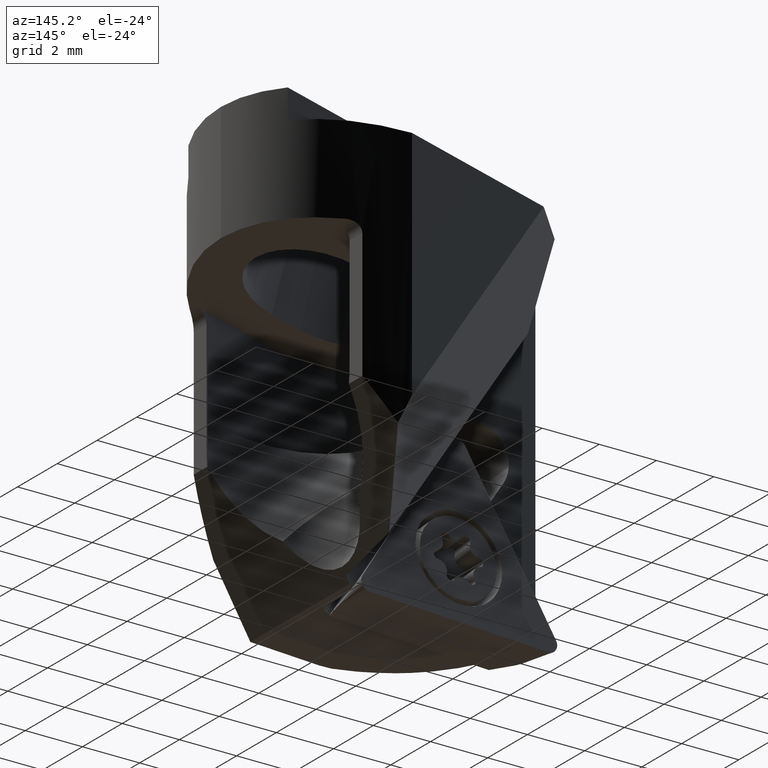
[diagram: clean part render]
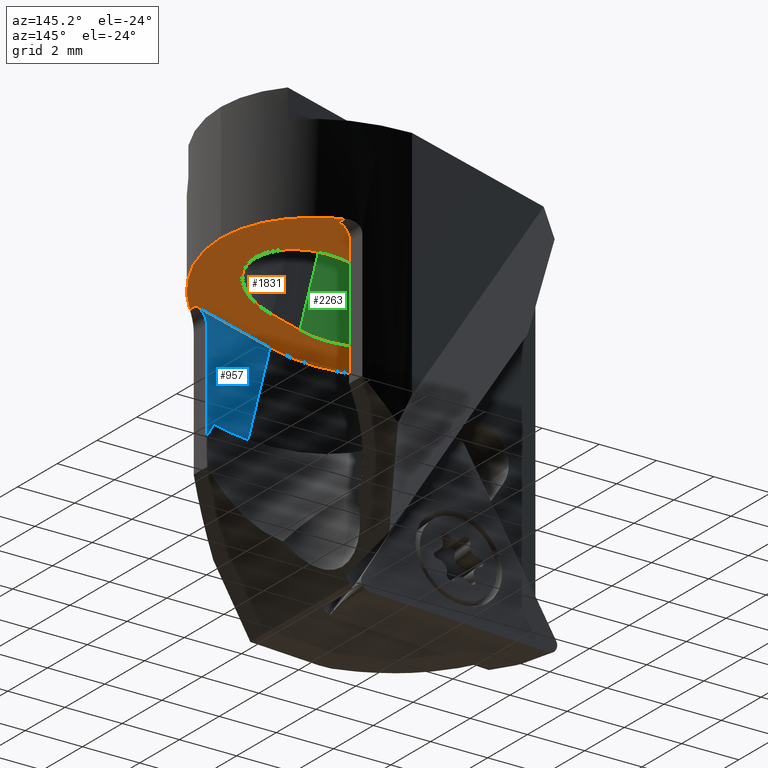
[diagram: same view with three faces highlighted in distinct colors, each labeled with its STEP entity id]
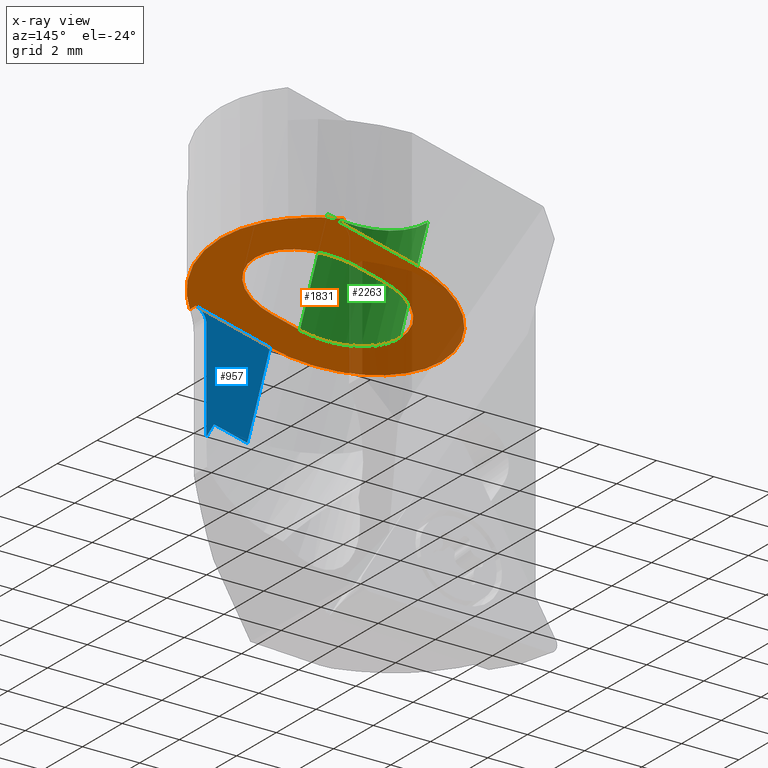
[diagram: x-ray of the same camera — body ghosted, the three highlighted faces saturated]
A machine part, auxiliary view with three faces highlighted in distinct colors.
The next image is the same camera in x-ray (body ghosted, the three faces saturated) — at least one of them is partly hidden behind the body in this view.
Their STEP definitions:

[orange] entity #1831 — the highlighted planar face has unit normal (-0.2419, 0, 0.9703).
#855=VERTEX_POINT('NONE',#2434);
#861=VERTEX_POINT('NONE',#2440);
#889=EDGE_CURVE('NONE',#1639,#1067,#2472,.T.);
#903=EDGE_CURVE('NONE',#1827,#2161,#2486,.T.);
#931=EDGE_CURVE('NONE',#973,#1065,#2515,.T.);
#941=EDGE_CURVE('NONE',#1785,#1617,#2527,.T.);
#969=VERTEX_POINT('NONE',#2557);
#973=VERTEX_POINT('NONE',#2561);
#975=EDGE_CURVE('NONE',#1617,#1349,#2563,.T.);
#989=EDGE_CURVE('NONE',#1929,#861,#2577,.T.);
#993=EDGE_CURVE('NONE',#1067,#1785,#2581,.T.);
#1015=EDGE_CURVE('NONE',#1065,#1775,#2603,.T.);
#1025=EDGE_CURVE('NONE',#1775,#969,#2613,.T.);
#1065=VERTEX_POINT('NONE',#2658);
#1067=VERTEX_POINT('NONE',#2660);
#1349=VERTEX_POINT('NONE',#2971);
#1617=VERTEX_POINT('NONE',#3265);
#1639=VERTEX_POINT('NONE',#3289);
#1695=EDGE_CURVE('NONE',#855,#1929,#3351,.T.);
#1775=VERTEX_POINT('',#3439);
#1785=VERTEX_POINT('',#3450);
#1827=VERTEX_POINT('NONE',#3496);
#1831=ADVANCED_FACE('NONE',(#3501,#3502),#3503,.F.);
#1929=VERTEX_POINT('NONE',#3610);
#2007=EDGE_CURVE('NONE',#1639,#855,#3701,.F.);
#2161=VERTEX_POINT('NONE',#3876);
#2277=EDGE_CURVE('NONE',#861,#1349,#4001,.F.);
#2349=EDGE_CURVE('NONE',#969,#1827,#4087,.T.);
#2375=EDGE_CURVE('NONE',#2161,#973,#4113,.T.);
#2434=CARTESIAN_POINT('',(3.87903905220017,3.89910964599689,-4.52660547320129));
#2440=CARTESIAN_POINT('',(3.87903905220017,-3.89910964599689,-4.5266054732013));
#2472=LINE('',#4233,#4234);
#2486=CIRCLE('',#4258,2.1);
#2515=LINE('',#4302,#4303);
#2527=CIRCLE('',#4317,3.6);
#2557=CARTESIAN_POINT('',(1.27660544682206,2.1,-5.17546504656218));
#2561=CARTESIAN_POINT('',(2.24690117309805,-2.1,-4.93354315096252));
#2563=LINE('',#4367,#4368);
#2577=ELLIPSE('',#4388,5.66837496142443,5.5);
#2581=CIRCLE('',#4393,3.6);
#2603=CIRCLE('',#4439,2.1);
#2613=CIRCLE('',#4458,2.1);
#2658=CARTESIAN_POINT('',(1.27660544682206,-2.1,-5.17546504656218));
#2660=CARTESIAN_POINT('',(1.27660544682206,3.6,-5.17546504656218));
#2971=CARTESIAN_POINT('',(3.87903905220017,-3.6,-4.5266054732013));
#3265=CARTESIAN_POINT('',(1.27660544682206,-3.6,-5.17546504656218));
#3289=CARTESIAN_POINT('',(3.87903905220017,3.6,-4.52660547320129));
#3351=ELLIPSE('',#5523,5.66837496142443,5.5);
#3439=CARTESIAN_POINT('',(-0.761015578357542,-2.57167334302699E-016,-5.68350102732146));
#3450=CARTESIAN_POINT('',(-2.21645916777154,-4.40858287376056E-016,-6.04638387072095));
#3496=CARTESIAN_POINT('',(2.24690117309805,2.1,-4.93354315096252));
#3501=FACE_OUTER_BOUND('',#5720,.T.);
#3502=FACE_BOUND('',#5721,.T.);
#3503=PLANE('',#5722);
#3610=CARTESIAN_POINT('',(5.5,0.0,-4.12245451739959));
#3701=LINE('',#5972,#5973);
#3876=CARTESIAN_POINT('',(4.28452219827765,0.0,-4.42550717020323));
#4001=LINE('',#7179,#7180);
#4087=LINE('',#7305,#7306);
#4113=CIRCLE('',#7346,2.1);
#4233=CARTESIAN_POINT('',(1.27660544682206,3.6,-5.17546504656218));
#4234=VECTOR('',#7427,1.0);
#4258=AXIS2_PLACEMENT_3D('',#7436,#7437,#7438);
#4302=CARTESIAN_POINT('',(1.27660544682206,-2.1,-5.17546504656218));
#4303=VECTOR('',#7464,1.0);
#4317=AXIS2_PLACEMENT_3D('',#7485,#7486,#7487);
#4367=CARTESIAN_POINT('',(1.27660544682206,-3.6,-5.17546504656218));
#4368=VECTOR('',#7525,1.0);
#4388=AXIS2_PLACEMENT_3D('',#7536,#7537,#7538);
#4393=AXIS2_PLACEMENT_3D('',#7539,#7540,#7541);
#4439=AXIS2_PLACEMENT_3D('',#7557,#7558,#7559);
#4458=AXIS2_PLACEMENT_3D('',#7564,#7565,#7566);
#5523=AXIS2_PLACEMENT_3D('',#8417,#8418,#8419);
#5720=EDGE_LOOP('',(#8610,#8611,#8612,#8613,#8614,#8615,#8616,#8617));
#5721=EDGE_LOOP('',(#8618,#8619,#8620,#8621,#8622,#8623));
#5722=AXIS2_PLACEMENT_3D('',#8624,#8625,#8626);
#5972=CARTESIAN_POINT('',(3.87903905220017,-15.0,-4.5266054732013));
#5973=VECTOR('',#8877,1.0);
#7179=CARTESIAN_POINT('',(3.87903905220017,-15.0,-4.5266054732013));
#7180=VECTOR('',#9258,1.0);
#7305=CARTESIAN_POINT('',(1.27660544682206,2.1,-5.17546504656218));
#7306=VECTOR('',#9395,1.0);
#7346=AXIS2_PLACEMENT_3D('',#9409,#9410,#9411);
#7427=DIRECTION('',(-0.970295726275998,0.0,-0.241921895599661));
#7436=CARTESIAN_POINT('',(2.24690117309805,0.0,-4.93354315096252));
#7437=DIRECTION('',(0.241921895599661,0.0,-0.970295726275998));
#7438=DIRECTION('',(0.970295726275998,0.0,0.241921895599661));
#7464=DIRECTION('',(-0.970295726275998,0.0,-0.241921895599661));
#7485=CARTESIAN_POINT('',(1.27660544682205,0.0,-5.17546504656218));
#7486=DIRECTION('',(-0.241921895599661,0.0,0.970295726275998));
#7487=DIRECTION('',(0.970295726275998,0.0,0.241921895599661));
#7525=DIRECTION('',(0.970295726275998,0.0,0.241921895599661));
#7536=CARTESIAN_POINT('',(-6.72791380277227E-016,0.0,-5.49375853303704));
#7537=DIRECTION('',(0.241921895599661,0.0,-0.970295726275998));
#7538=DIRECTION('',(0.970295726275998,0.0,0.241921895599661));
#7539=CARTESIAN_POINT('',(1.27660544682205,0.0,-5.17546504656218));
#7540=DIRECTION('',(-0.241921895599661,0.0,0.970295726275998));
#7541=DIRECTION('',(0.970295726275998,0.0,0.241921895599661));
#7557=CARTESIAN_POINT('',(1.27660544682206,0.0,-5.17546504656218));
#7558=DIRECTION('',(0.241921895599661,0.0,-0.970295726275998));
#7559=DIRECTION('',(0.970295726275998,0.0,0.241921895599661));
#7564=CARTESIAN_POINT('',(1.27660544682206,0.0,-5.17546504656218));
#7565=DIRECTION('',(0.241921895599661,0.0,-0.970295726275998));
#7566=DIRECTION('',(0.970295726275998,0.0,0.241921895599661));
#8417=CARTESIAN_POINT('',(-6.72791380277227E-016,0.0,-5.49375853303704));
#8418=DIRECTION('',(0.241921895599661,0.0,-0.970295726275998));
#8419=DIRECTION('',(0.970295726275998,0.0,0.241921895599661));
#8610=ORIENTED_EDGE('',*,*,#1695,.T.);
#8611=ORIENTED_EDGE('',*,*,#989,.T.);
#8612=ORIENTED_EDGE('',*,*,#2277,.T.);
#8613=ORIENTED_EDGE('',*,*,#975,.F.);
#8614=ORIENTED_EDGE('',*,*,#941,.F.);
#8615=ORIENTED_EDGE('',*,*,#993,.F.);
#8616=ORIENTED_EDGE('',*,*,#889,.F.);
#8617=ORIENTED_EDGE('',*,*,#2007,.T.);
#8618=ORIENTED_EDGE('',*,*,#931,.F.);
#8619=ORIENTED_EDGE('',*,*,#2375,.F.);
#8620=ORIENTED_EDGE('',*,*,#903,.F.);
#8621=ORIENTED_EDGE('',*,*,#2349,.F.);
#8622=ORIENTED_EDGE('',*,*,#1025,.F.);
#8623=ORIENTED_EDGE('',*,*,#1015,.F.);
#8624=CARTESIAN_POINT('',(1.27660544682206,0.0,-5.17546504656218));
#8625=DIRECTION('',(-0.241921895599661,0.0,0.970295726275998));
#8626=DIRECTION('',(0.0,1.0,0.0));
#8877=DIRECTION('',(0.0,-1.0,0.0));
#9258=DIRECTION('',(0.0,-1.0,0.0));
#9395=DIRECTION('',(0.970295726275998,0.0,0.241921895599661));
#9409=CARTESIAN_POINT('',(2.24690117309805,0.0,-4.93354315096252));
#9410=DIRECTION('',(0.241921895599661,0.0,-0.970295726275998));
#9411=DIRECTION('',(0.970295726275998,0.0,0.241921895599661));

[blue] entity #957 — the highlighted planar face has unit normal (0, -1, -0).
#867=EDGE_CURVE('NONE',#1339,#1329,#2446,.T.);
#925=EDGE_CURVE('NONE',#1349,#1339,#2509,.T.);
#957=ADVANCED_FACE('NONE',(#2543),#2544,.F.);
#975=EDGE_CURVE('NONE',#1617,#1349,#2563,.T.);
#1113=EDGE_CURVE('NONE',#1329,#1481,#2707,.F.);
#1329=VERTEX_POINT('NONE',#2948);
#1339=VERTEX_POINT('NONE',#2960);
#1349=VERTEX_POINT('NONE',#2971);
#1481=VERTEX_POINT('NONE',#3117);
#1617=VERTEX_POINT('NONE',#3265);
#1811=EDGE_CURVE('NONE',#2187,#1617,#3479,.F.);
#2187=VERTEX_POINT('NONE',#3905);
#2325=EDGE_CURVE('NONE',#2187,#1481,#4061,.F.);
#2446=LINE('',#4196,#4197);
#2509=CIRCLE('',#4293,0.5);
#2543=FACE_OUTER_BOUND('',#4339,.T.);
#2544=PLANE('',#4340);
#2563=LINE('',#4367,#4368);
#2707=LINE('',#4593,#4594);
#2948=CARTESIAN_POINT('',(3.5,-3.6,-8.54217782649104));
#2960=CARTESIAN_POINT('',(3.5,-3.6,-5.0117533363393));
#2971=CARTESIAN_POINT('',(3.87903905220017,-3.6,-4.5266054732013));
#3117=CARTESIAN_POINT('',(3.23753513269767,-3.6,-8.08757534112158));
#3265=CARTESIAN_POINT('',(1.27660544682206,-3.6,-5.17546504656218));
#3479=LINE('',#5692,#5693);
#3905=CARTESIAN_POINT('',(2.07494770230094,-3.6,-8.37744094327297));
#4061=LINE('',#7258,#7259);
#4196=CARTESIAN_POINT('',(3.5,-3.6,-8.93872047163649));
#4197=VECTOR('',#7383,1.0);
#4293=AXIS2_PLACEMENT_3D('',#7460,#7461,#7462);
#4339=EDGE_LOOP('',(#7497,#7498,#7499,#7500,#7501,#7502));
#4340=AXIS2_PLACEMENT_3D('',#7503,#7504,#7505);
#4367=CARTESIAN_POINT('',(1.27660544682206,-3.6,-5.17546504656218));
#4368=VECTOR('',#7525,1.0);
#4593=CARTESIAN_POINT('',(8.52481506708208,-3.6,-17.2454128213148));
#4594=VECTOR('',#7664,1.0);
#5692=CARTESIAN_POINT('',(2.07494770230094,-3.6,-8.37744094327297));
#5693=VECTOR('',#8581,1.0);
#7258=CARTESIAN_POINT('',(2.07494770230094,-3.6,-8.37744094327297));
#7259=VECTOR('',#9366,1.0);
#7383=DIRECTION('',(-1.22464679914735E-016,0.0,-1.0));
#7460=CARTESIAN_POINT('',(4.0,-3.6,-5.0117533363393));
#7461=DIRECTION('',(0.0,-1.0,0.0));
#7462=DIRECTION('',(1.22464679914735E-016,0.0,1.0));
#7497=ORIENTED_EDGE('',*,*,#867,.T.);
#7498=ORIENTED_EDGE('',*,*,#1113,.T.);
#7499=ORIENTED_EDGE('',*,*,#2325,.F.);
#7500=ORIENTED_EDGE('',*,*,#1811,.T.);
#7501=ORIENTED_EDGE('',*,*,#975,.T.);
#7502=ORIENTED_EDGE('',*,*,#925,.T.);
#7503=CARTESIAN_POINT('',(2.07494770230094,-3.6,-8.37744094327297));
#7504=DIRECTION('',(0.0,-1.0,-0.0));
#7505=DIRECTION('',(-1.22464679914735E-016,0.0,-1.0));
#7525=DIRECTION('',(0.970295726275998,0.0,0.241921895599661));
#7664=DIRECTION('',(0.500000000000001,4.8186763221578E-016,-0.866025403784438));
#8581=DIRECTION('',(0.241921895599661,0.0,-0.970295726275998));
#9366=DIRECTION('',(-0.970295726275998,0.0,-0.241921895599661));

[green] entity #2263 — the highlighted cylindrical surface (partial cylindrical patch) has radius 2.1 mm, axis along (-0.2419, -0, 0.9703).
#1015=EDGE_CURVE('NONE',#1065,#1775,#2603,.T.);
#1041=VERTEX_POINT('NONE',#2631);
#1065=VERTEX_POINT('NONE',#2658);
#1161=VERTEX_POINT('',#2760);
#1309=EDGE_CURVE('NONE',#1161,#1041,#2926,.F.);
#1775=VERTEX_POINT('',#3439);
#1963=EDGE_CURVE('NONE',#1065,#1041,#3648,.F.);
#2225=EDGE_CURVE('',#1775,#1161,#3943,.T.);
#2263=ADVANCED_FACE('NONE',(#3984),#3985,.F.);
#2603=CIRCLE('',#4439,2.1);
#2631=CARTESIAN_POINT('',(0.308917864423413,-2.1,-1.29428214145818));
#2658=CARTESIAN_POINT('',(1.27660544682206,-2.1,-5.17546504656218));
#2760=CARTESIAN_POINT('',(-1.72870316075618,-2.57167334302699E-016,-1.80231812221747));
#2926=CIRCLE('',#4898,2.1);
#3439=CARTESIAN_POINT('',(-0.761015578357542,-2.57167334302699E-016,-5.68350102732146));
#3648=LINE('',#5908,#5909);
#3943=LINE('',#7104,#7105);
#3984=FACE_OUTER_BOUND('',#7157,.T.);
#3985=CYLINDRICAL_SURFACE('',#7158,2.1);
#4439=AXIS2_PLACEMENT_3D('',#7557,#7558,#7559);
#4898=AXIS2_PLACEMENT_3D('',#7942,#7943,#7944);
#5908=CARTESIAN_POINT('',(1.51852734242172,-2.1,-6.14576077283818));
#5909=VECTOR('',#8782,1.0);
#7104=CARTESIAN_POINT('',(-1.24485936955686,-2.57167334302699E-016,-3.74290957476947));
#7105=VECTOR('',#9183,1.0);
#7157=EDGE_LOOP('',(#9231,#9232,#9233,#9234));
#7158=AXIS2_PLACEMENT_3D('',#9235,#9236,#9237);
#7557=CARTESIAN_POINT('',(1.27660544682206,0.0,-5.17546504656218));
#7558=DIRECTION('',(0.241921895599661,0.0,-0.970295726275998));
#7559=DIRECTION('',(0.970295726275998,0.0,0.241921895599661));
#7942=CARTESIAN_POINT('',(0.308917864423413,0.0,-1.29428214145818));
#7943=DIRECTION('',(0.241921895599661,0.0,-0.970295726275998));
#7944=DIRECTION('',(0.970295726275998,0.0,0.241921895599661));
#8782=DIRECTION('',(0.241921895599661,0.0,-0.970295726275998));
#9183=DIRECTION('',(-0.241921895599661,-0.0,0.970295726275998));
#9231=ORIENTED_EDGE('',*,*,#2225,.T.);
#9232=ORIENTED_EDGE('',*,*,#1309,.T.);
#9233=ORIENTED_EDGE('',*,*,#1963,.F.);
#9234=ORIENTED_EDGE('',*,*,#1015,.T.);
#9235=CARTESIAN_POINT('',(1.51852734242172,0.0,-6.14576077283818));
#9236=DIRECTION('',(-0.241921895599661,-0.0,0.970295726275998));
#9237=DIRECTION('',(0.970295726275998,0.0,0.241921895599661));